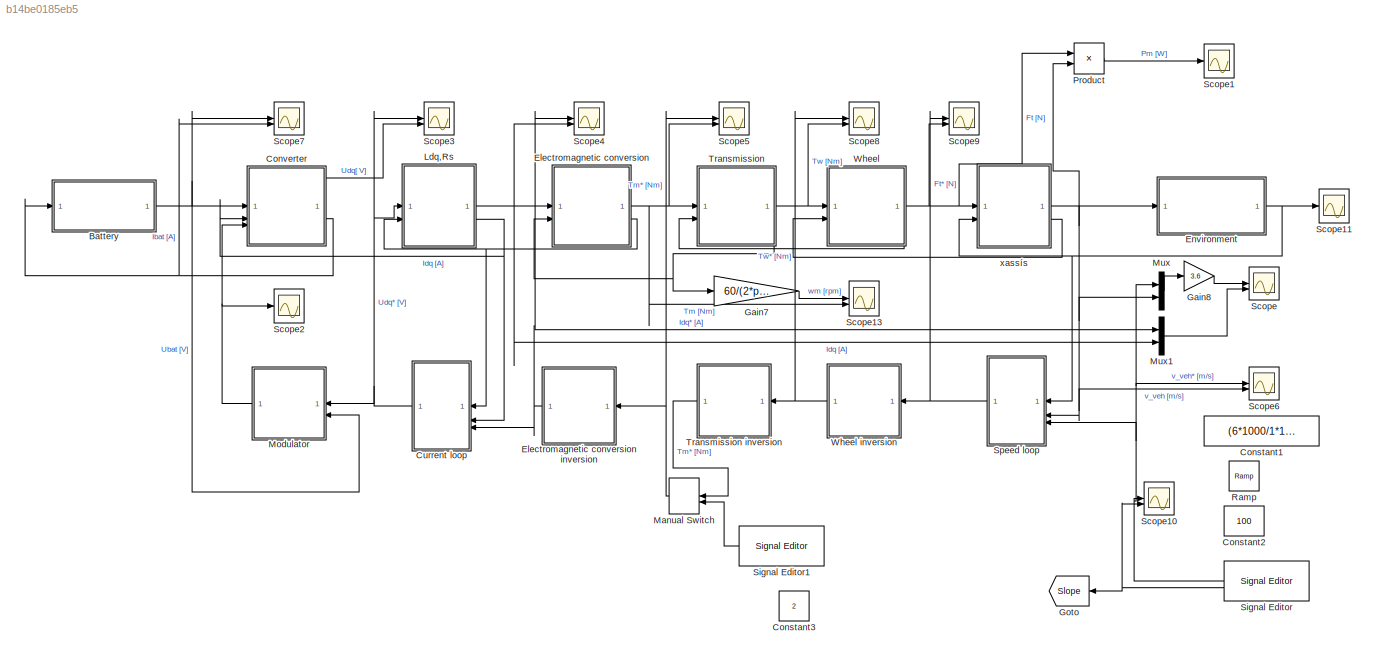
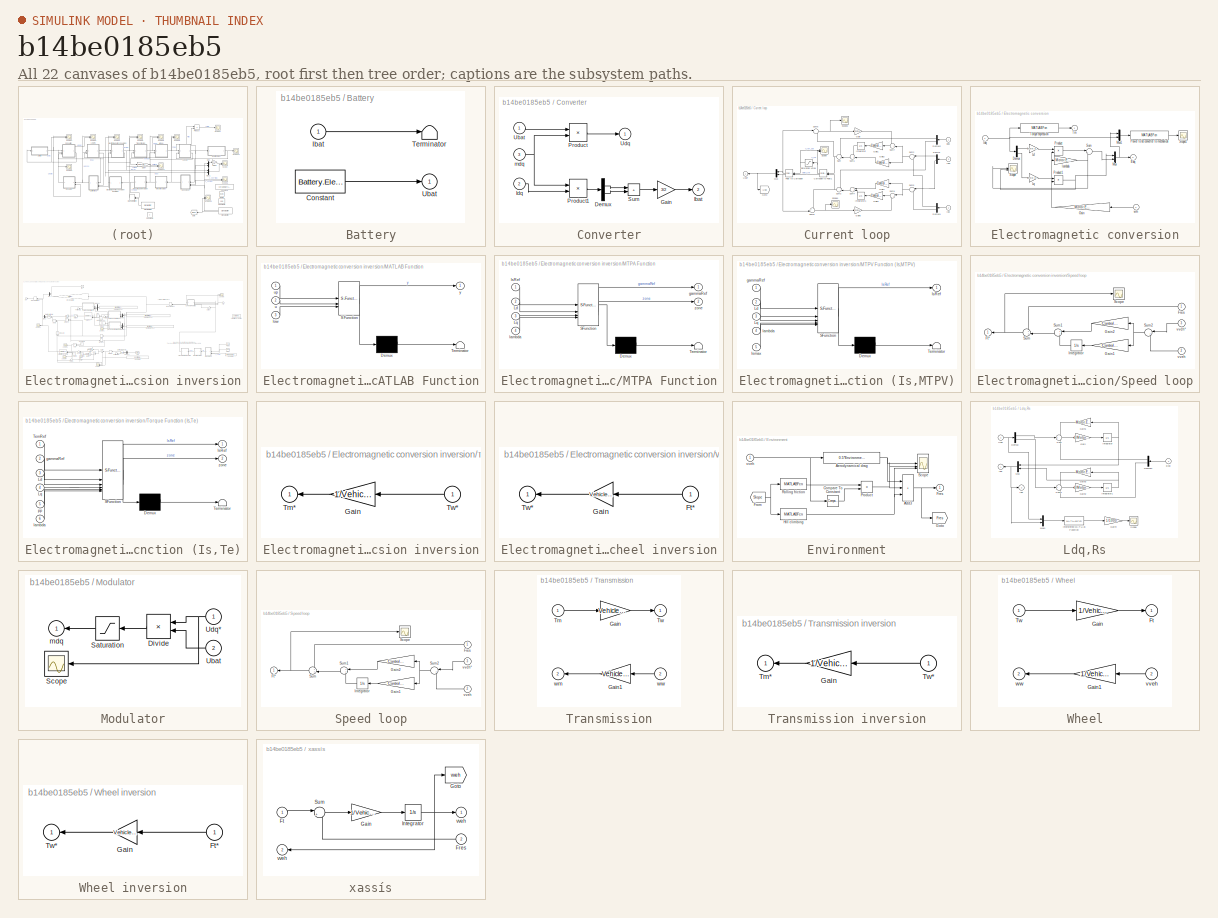
[diagram: thumbnail index - all 22 canvases of the model, root first then tree order]
MODEL slx_b14be0185eb5
KIND model
CONFIG AbsTol = auto
CONFIG EnableMultiTasking = on
CONFIG FixedStep = auto
CONFIG MaxStep = 1
CONFIG MinStep = auto
CONFIG RelTol = 1e-3
CONFIG SampleTimeConstraint = Unconstrained
CONFIG SolverName = ode45
CONFIG StartTime = 0.0
CONFIG StopTime = 10
BLOCK [SubSystem] Battery
  AncestorBlock = simulink/REM/SE
BLOCK [Constant] Battery/Constant
  Value = Battery.Electrical.Ubat
BLOCK [Inport] Battery/Ibat
BLOCK [Terminator] Battery/Terminator
BLOCK [Outport] Battery/Ubat
  InitialOutput = 0
  VectorParamsAs1DForOutWhenUnconnected = off
BLOCK [Constant] Constant1
  NameLocation = top
  Value = (6*1000/1*1/3600)
BLOCK [Constant] Constant2
  NameLocation = top
  Value = 100
BLOCK [Constant] Constant3
  NameLocation = top
  Value = 2
BLOCK [SubSystem] Converter
  AncestorBlock = simulink/REM/EC Elec
  NameLocation = top
BLOCK [Demux] Converter/Demux
  Outputs = 2
BLOCK [Gain] Converter/Gain
  Gain = 3/2
BLOCK [Outport] Converter/Ibat
  InitialOutput = 0
  NameLocation = top
  Port = 2
  VectorParamsAs1DForOutWhenUnconnected = off
BLOCK [Inport] Converter/Idq
  NameLocation = top
  Port = 2
BLOCK [Product] Converter/Product
BLOCK [Product] Converter/Product1
BLOCK [Sum] Converter/Sum
  IconShape = rectangular
BLOCK [Inport] Converter/Ubat
BLOCK [Outport] Converter/Udq
  InitialOutput = 0
  VectorParamsAs1DForOutWhenUnconnected = off
BLOCK [Inport] Converter/mdq
  Port = 3
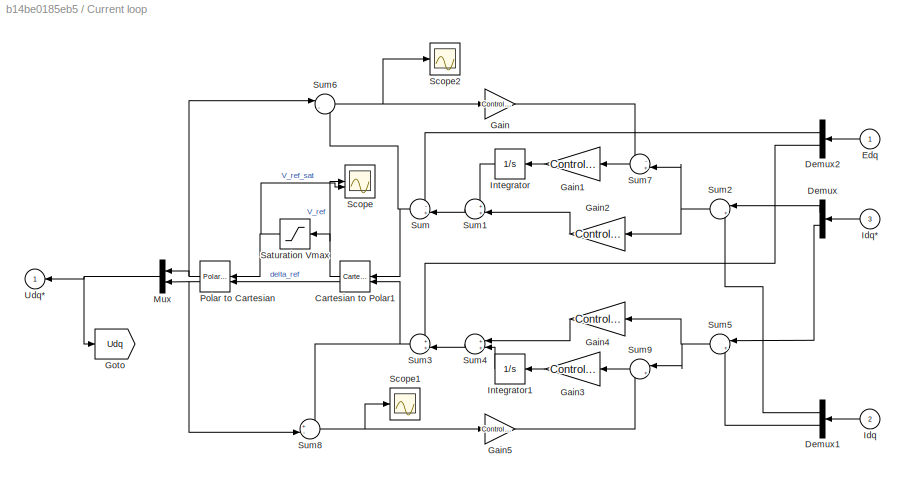
BLOCK [SubSystem] Current loop
  AncestorBlock = simulink/SMC/Asservissement\nCorrecteur IP
BLOCK [Reference] Current loop/Cartesian to Polar1  REF=simulink_extras/Transformations/Cartesian to
Polar
  NameLocation = top
  SourceBlock = simulink_extras/Transformations/Cartesian to\nPolar
  SourceType = Cart2Polar
BLOCK [Demux] Current loop/Demux
  NameLocation = top
  Outputs = 2
BLOCK [Demux] Current loop/Demux1
  NameLocation = top
  Outputs = 2
BLOCK [Demux] Current loop/Demux2
  NameLocation = top
  Outputs = 2
BLOCK [Inport] Current loop/Edq
  NameLocation = top
BLOCK [Gain] Current loop/Gain
  Gain = Control.Current.Kaw_id
BLOCK [Gain] Current loop/Gain1
  Gain = Control.Current.Ki_id
  NameLocation = top
BLOCK [Gain] Current loop/Gain2
  Gain = Control.Current.Kp_id
  NameLocation = top
BLOCK [Gain] Current loop/Gain3
  Gain = Control.Current.Ki_iq
  NameLocation = top
BLOCK [Gain] Current loop/Gain4
  Gain = Control.Current.Kp_iq
  NameLocation = top
BLOCK [Gain] Current loop/Gain5
  Gain = Control.Current.Kaw_iq
BLOCK [Goto] Current loop/Goto
  GotoTag = Udq
  TagVisibility = global
BLOCK [Inport] Current loop/Idq
  NameLocation = top
  Port = 2
BLOCK [Inport] Current loop/Idq*
  Port = 3
BLOCK [Integrator] Current loop/Integrator
  NameLocation = top
BLOCK [Integrator] Current loop/Integrator1
  NameLocation = top
BLOCK [Mux] Current loop/Mux
  DisplayOption = bar
  Inputs = 2
  NameLocation = top
BLOCK [Reference] Current loop/Polar to Cartesian  REF=simulink_extras/Transformations/Polar to
Cartesian
  NameLocation = top
  SourceBlock = simulink_extras/Transformations/Polar to\nCartesian
  SourceType = Polar2Cart
BLOCK [Saturate] Current loop/Saturation Vmax
  LowerLimit = -Motor.Electrical.Umax
  NameLocation = top
  UpperLimit = Motor.Electrical.Umax
BLOCK [Scope] Current loop/Scope
  Floating = off
  NumInputPorts = 2
  ScopeSpecificationString = Simulink.scopes.TimeScopeBlockCfg('CurrentConfiguration', extmgr.ConfigurationSet(extmgr.Configuration('Core','General UI',true),extmgr.Configuration('Core','Source UI',true),extmgr.Configuration('Sources','WiredSimulink',true,'DataLoggingVariableName','ScopeData1'),extmgr.Configuration('Visuals','Time Domain',true,'SerializedDisplays',{struct('MinYLimReal','-3.96619','MaxYLimReal','35.69567','YLa...<+1453ch>
BLOCK [Scope] Current loop/Scope1
  Floating = off
  NumInputPorts = 1
  ScopeSpecificationString = Simulink.scopes.TimeScopeBlockCfg('CurrentConfiguration', extmgr.ConfigurationSet(extmgr.Configuration('Core','General UI',true),extmgr.Configuration('Core','Source UI',true),extmgr.Configuration('Sources','WiredSimulink',true,'DataLoggingVariableName','ScopeData3'),extmgr.Configuration('Visuals','Time Domain',true,'SerializedDisplays',{struct('MinYLimReal','-46.65621','MaxYLimReal','30.16965','YL...<+1369ch>
BLOCK [Scope] Current loop/Scope2
  Floating = off
  NumInputPorts = 1
  ScopeSpecificationString = Simulink.scopes.TimeScopeBlockCfg('CurrentConfiguration', extmgr.ConfigurationSet(extmgr.Configuration('Core','General UI',true),extmgr.Configuration('Core','Source UI',true),extmgr.Configuration('Sources','WiredSimulink',true,'DataLoggingVariableName','ScopeData3'),extmgr.Configuration('Visuals','Time Domain',true,'SerializedDisplays',{struct('MinYLimReal','-22.60835','MaxYLimReal','29.61566','YL...<+1369ch>
BLOCK [Sum] Current loop/Sum
  Inputs = -+|
  NameLocation = top
BLOCK [Sum] Current loop/Sum1
  NameLocation = top
BLOCK [Sum] Current loop/Sum2
  Inputs = |+-
  NameLocation = top
BLOCK [Sum] Current loop/Sum3
  Inputs = ++|
  NameLocation = top
BLOCK [Sum] Current loop/Sum4
  NameLocation = top
BLOCK [Sum] Current loop/Sum5
  Inputs = |+-
  NameLocation = top
BLOCK [Sum] Current loop/Sum6
  Inputs = |-+
BLOCK [Sum] Current loop/Sum7
  Inputs = -+|
  NameLocation = top
BLOCK [Sum] Current loop/Sum8
  Inputs = +-|
BLOCK [Sum] Current loop/Sum9
  Inputs = |+-
  NameLocation = top
BLOCK [Outport] Current loop/Udq*
  InitialOutput = 0
  VectorParamsAs1DForOutWhenUnconnected = off
BLOCK [SubSystem] Electromagnetic conversion
  AncestorBlock = simulink/REM/EC EM
  NameLocation = top
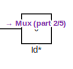
[diagram: Electromagnetic conversion inversion - part 1/5, top left region]
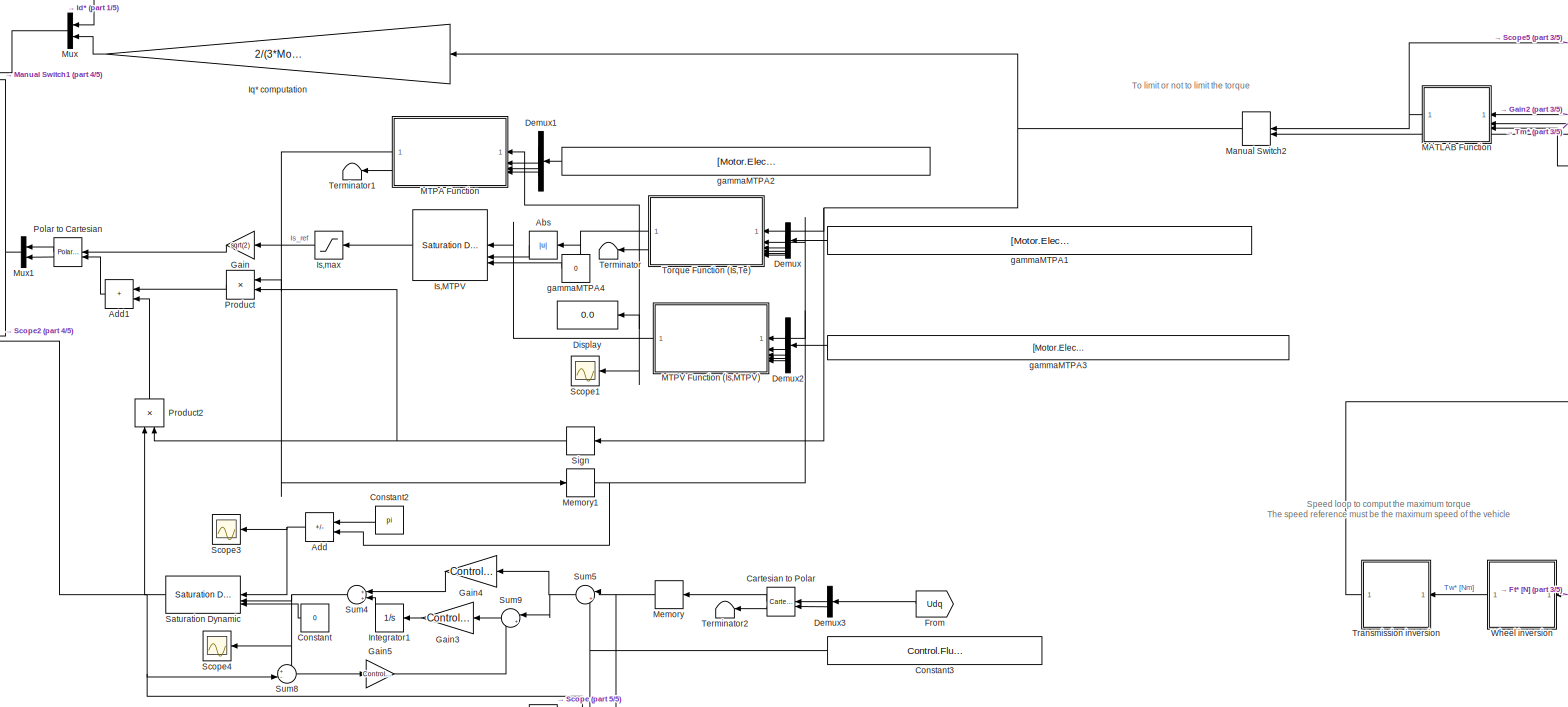
[diagram: Electromagnetic conversion inversion - part 2/5, most of the canvas]
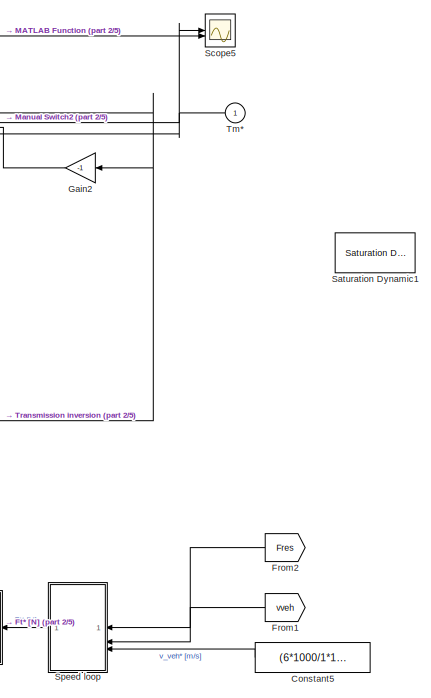
[diagram: Electromagnetic conversion inversion - part 3/5, right side, full height]
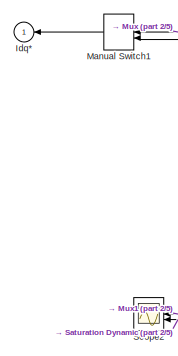
[diagram: Electromagnetic conversion inversion - part 4/5, middle left region]
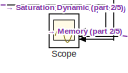
[diagram: Electromagnetic conversion inversion - part 5/5, bottom center region]
BLOCK [SubSystem] Electromagnetic conversion inversion
  AncestorBlock = simulink/SMC/Inversion EC\navec mesure
BLOCK [Abs] Electromagnetic conversion inversion/Abs
  NameLocation = top
  SaturateOnIntegerOverflow = off
BLOCK [Sum] Electromagnetic conversion inversion/Add
  IconShape = rectangular
  Inputs = +-
  NameLocation = top
BLOCK [Sum] Electromagnetic conversion inversion/Add1
  IconShape = rectangular
  NameLocation = top
BLOCK [Reference] Electromagnetic conversion inversion/Cartesian to Polar  REF=simulink_extras/Transformations/Cartesian to
Polar
  NameLocation = top
  SourceBlock = simulink_extras/Transformations/Cartesian to\nPolar
  SourceType = Cart2Polar
BLOCK [Constant] Electromagnetic conversion inversion/Constant
  NameLocation = top
  Value = 0
BLOCK [Constant] Electromagnetic conversion inversion/Constant2
  NameLocation = top
  Value = pi
BLOCK [Constant] Electromagnetic conversion inversion/Constant3
  NameLocation = top
  SampleTime = -1
  Value = Control.FluxWeakening.Umax_FW
BLOCK [Constant] Electromagnetic conversion inversion/Constant5
  NameLocation = top
  Value = (6*1000/1*1/3600)
BLOCK [Demux] Electromagnetic conversion inversion/Demux
  NameLocation = top
BLOCK [Demux] Electromagnetic conversion inversion/Demux1
  NameLocation = top
  Outputs = 3
BLOCK [Demux] Electromagnetic conversion inversion/Demux2
  NameLocation = right
BLOCK [Demux] Electromagnetic conversion inversion/Demux3
  NameLocation = top
  Outputs = 2
BLOCK [Display] Electromagnetic conversion inversion/Display
  Decimation = 1
  NameLocation = top
BLOCK [From] Electromagnetic conversion inversion/From
  GotoTag = Udq
  NameLocation = top
  TagVisibility = global
BLOCK [From] Electromagnetic conversion inversion/From1
  GotoTag = vveh
  NameLocation = top
  TagVisibility = global
BLOCK [From] Electromagnetic conversion inversion/From2
  GotoTag = Fres
  NameLocation = top
  TagVisibility = global
BLOCK [Gain] Electromagnetic conversion inversion/Gain
  Gain = sqrt(2)
  NameLocation = top
BLOCK [Gain] Electromagnetic conversion inversion/Gain2
  Gain = -1
  NameLocation = top
BLOCK [Gain] Electromagnetic conversion inversion/Gain3
  Gain = Control.FluxWeakening.Ki_V
  NameLocation = top
BLOCK [Gain] Electromagnetic conversion inversion/Gain4
  Gain = Control.FluxWeakening.Kp_V
  NameLocation = top
BLOCK [Gain] Electromagnetic conversion inversion/Gain5
  Gain = Control.FluxWeakening.Kaw_V
BLOCK [Constant] Electromagnetic conversion inversion/Id*
  NameLocation = top
  Value = 0
BLOCK [Outport] Electromagnetic conversion inversion/Idq*
  InitialOutput = 0
  VectorParamsAs1DForOutWhenUnconnected = off
BLOCK [Integrator] Electromagnetic conversion inversion/Integrator1
  NameLocation = top
BLOCK [Gain] Electromagnetic conversion inversion/Iq* computation
  Gain = 2/(3*Motor.Electrical.pp*Motor.Electrical.lambda)
  NameLocation = top
BLOCK [Reference] Electromagnetic conversion inversion/Is,MTPV  REF=simulink/Discontinuities/Saturation
Dynamic
  NameLocation = top
  SourceBlock = simulink/Discontinuities/Saturation\nDynamic
  SourceType = Saturation Dynamic
BLOCK [Saturate] Electromagnetic conversion inversion/Is,max
  LowerLimit = 0
  NameLocation = top
  UpperLimit = Motor.Electrical.Imax
BLOCK [SubSystem] Electromagnetic conversion inversion/MATLAB Function
  ErrorFcn = Stateflow.Translate.translate
  LibrarySourceBlock = simulink/User-Defined\nFunctions/MATLAB Function
  NameLocation = top
  PermitHierarchicalResolution = ExplicitOnly
  SFBlockType = MATLAB Function
  TreatAsAtomicUnit = on
BLOCK [Demux] Electromagnetic conversion inversion/MATLAB Function/ Demux 
  Outputs = 1
BLOCK [S-Function] Electromagnetic conversion inversion/MATLAB Function/ SFunction 
  EnableBusSupport = on
  FunctionName = sf_sfun
  PortCounts = [3 2]
  SFcnIsStateOwnerBlock = off
  SFunctionDeploymentMode = off
  Tag = Stateflow S-Function 4
BLOCK [Terminator] Electromagnetic conversion inversion/MATLAB Function/ Terminator 
BLOCK [Inport] Electromagnetic conversion inversion/MATLAB Function/low
  Port = 3
BLOCK [Inport] Electromagnetic conversion inversion/MATLAB Function/u
  Port = 2
BLOCK [Inport] Electromagnetic conversion inversion/MATLAB Function/up
BLOCK [Outport] Electromagnetic conversion inversion/MATLAB Function/y
BLOCK [SubSystem] Electromagnetic conversion inversion/MTPA Function
  ErrorFcn = Stateflow.Translate.translate
  LibrarySourceBlock = simulink/User-Defined\nFunctions/MATLAB Function
  NameLocation = top
  PermitHierarchicalResolution = ExplicitOnly
  SFBlockType = MATLAB Function
  TreatAsAtomicUnit = on
BLOCK [Demux] Electromagnetic conversion inversion/MTPA Function/ Demux 
  Outputs = 1
BLOCK [S-Function] Electromagnetic conversion inversion/MTPA Function/ SFunction 
  EnableBusSupport = on
  FunctionName = sf_sfun
  PortCounts = [4 3]
  SFcnIsStateOwnerBlock = off
  SFunctionDeploymentMode = off
  Tag = Stateflow S-Function 2
BLOCK [Terminator] Electromagnetic conversion inversion/MTPA Function/ Terminator 
BLOCK [Inport] Electromagnetic conversion inversion/MTPA Function/IsRef
BLOCK [Inport] Electromagnetic conversion inversion/MTPA Function/Ld
  Port = 2
BLOCK [Inport] Electromagnetic conversion inversion/MTPA Function/Lq
  Port = 3
BLOCK [Outport] Electromagnetic conversion inversion/MTPA Function/gammaRef
BLOCK [Inport] Electromagnetic conversion inversion/MTPA Function/lambda
  Port = 4
BLOCK [Outport] Electromagnetic conversion inversion/MTPA Function/zone
  Port = 2
BLOCK [SubSystem] Electromagnetic conversion inversion/MTPV Function (Is,MTPV)
  ErrorFcn = Stateflow.Translate.translate
  LibrarySourceBlock = simulink/User-Defined\nFunctions/MATLAB Function
  NameLocation = top
  PermitHierarchicalResolution = ExplicitOnly
  SFBlockType = MATLAB Function
  TreatAsAtomicUnit = on
BLOCK [Demux] Electromagnetic conversion inversion/MTPV Function (Is,MTPV)/ Demux 
  Outputs = 1
BLOCK [S-Function] Electromagnetic conversion inversion/MTPV Function (Is,MTPV)/ SFunction 
  EnableBusSupport = on
  FunctionName = sf_sfun
  PortCounts = [5 2]
  SFcnIsStateOwnerBlock = off
  SFunctionDeploymentMode = off
  Tag = Stateflow S-Function 3
BLOCK [Terminator] Electromagnetic conversion inversion/MTPV Function (Is,MTPV)/ Terminator 
BLOCK [Outport] Electromagnetic conversion inversion/MTPV Function (Is,MTPV)/IsRef
BLOCK [Inport] Electromagnetic conversion inversion/MTPV Function (Is,MTPV)/Ismax
  Port = 5
BLOCK [Inport] Electromagnetic conversion inversion/MTPV Function (Is,MTPV)/Ld
  Port = 2
BLOCK [Inport] Electromagnetic conversion inversion/MTPV Function (Is,MTPV)/Lq
  Port = 3
BLOCK [Inport] Electromagnetic conversion inversion/MTPV Function (Is,MTPV)/gammaRef
BLOCK [Inport] Electromagnetic conversion inversion/MTPV Function (Is,MTPV)/lambda
  Port = 4
BLOCK [ManualSwitch] Electromagnetic conversion inversion/Manual Switch1
  NameLocation = top
BLOCK [ManualSwitch] Electromagnetic conversion inversion/Manual Switch2
  CurrentSetting = 0
  NameLocation = top
BLOCK [Memory] Electromagnetic conversion inversion/Memory
  NameLocation = top
BLOCK [Memory] Electromagnetic conversion inversion/Memory1
  InitialCondition = pi/2
BLOCK [Mux] Electromagnetic conversion inversion/Mux
  DisplayOption = bar
  Inputs = 2
  NameLocation = top
BLOCK [Mux] Electromagnetic conversion inversion/Mux1
  DisplayOption = bar
  Inputs = 2
  NameLocation = top
BLOCK [Reference] Electromagnetic conversion inversion/Polar to Cartesian  REF=simulink_extras/Transformations/Polar to
Cartesian
  NameLocation = top
  SourceBlock = simulink_extras/Transformations/Polar to\nCartesian
  SourceType = Polar2Cart
BLOCK [Product] Electromagnetic conversion inversion/Product
  NameLocation = top
BLOCK [Product] Electromagnetic conversion inversion/Product2
  NameLocation = right
BLOCK [Reference] Electromagnetic conversion inversion/Saturation Dynamic  REF=simulink/Discontinuities/Saturation
Dynamic
  NameLocation = top
  SourceBlock = simulink/Discontinuities/Saturation\nDynamic
  SourceType = Saturation Dynamic
BLOCK [Reference] Electromagnetic conversion inversion/Saturation Dynamic1  REF=simulink/Discontinuities/Saturation
Dynamic
  NameLocation = top
  SourceBlock = simulink/Discontinuities/Saturation\nDynamic
  SourceType = Saturation Dynamic
BLOCK [Scope] Electromagnetic conversion inversion/Scope
  Floating = off
  NameLocation = top
  NumInputPorts = 3
  ScopeSpecificationString = Simulink.scopes.TimeScopeBlockCfg('CurrentConfiguration', extmgr.ConfigurationSet(extmgr.Configuration('Core','General UI',true),extmgr.Configuration('Core','Source UI',true),extmgr.Configuration('Sources','WiredSimulink',true,'DataLoggingVariableName','ScopeData1'),extmgr.Configuration('Visuals','Time Domain',true,'SerializedDisplays',{struct('MinYLimReal','-0.08067','MaxYLimReal','0.72602','YLab...<+2132ch>
BLOCK [Scope] Electromagnetic conversion inversion/Scope1
  Floating = off
  NameLocation = top
  NumInputPorts = 1
  ScopeSpecificationString = Simulink.scopes.TimeScopeBlockCfg('CurrentConfiguration', extmgr.ConfigurationSet(extmgr.Configuration('Core','General UI',true),extmgr.Configuration('Core','Source UI',true),extmgr.Configuration('Sources','WiredSimulink',true,'DataLoggingVariableName','ScopeData2'),extmgr.Configuration('Visuals','Time Domain',true,'SerializedDisplays',{struct('MinYLimReal','-36.92443','MaxYLimReal','332.31991','Y...<+1398ch>
BLOCK [Scope] Electromagnetic conversion inversion/Scope2
  Floating = off
  NameLocation = top
  NumInputPorts = 2
  ScopeSpecificationString = Simulink.scopes.TimeScopeBlockCfg('CurrentConfiguration', extmgr.ConfigurationSet(extmgr.Configuration('Core','General UI',true),extmgr.Configuration('Core','Source UI',true),extmgr.Configuration('Sources','WiredSimulink',true,'DataLoggingVariableName','ScopeData1'),extmgr.Configuration('Visuals','Time Domain',true,'SerializedDisplays',{struct('MinYLimReal','-93.3464','MaxYLimReal','129.18585','YL...<+2062ch>
BLOCK [Scope] Electromagnetic conversion inversion/Scope3
  Floating = off
  NameLocation = top
  NumInputPorts = 1
  ScopeSpecificationString = Simulink.scopes.TimeScopeBlockCfg('CurrentConfiguration', extmgr.ConfigurationSet(extmgr.Configuration('Core','General UI',true),extmgr.Configuration('Core','Source UI',true),extmgr.Configuration('Sources','WiredSimulink',true,'DataLoggingVariableName','ScopeData2'),extmgr.Configuration('Visuals','Time Domain',true,'SerializedDisplays',{struct('MinYLimReal','1.30855','MaxYLimReal','1.59993','YLabe...<+1360ch>
BLOCK [Scope] Electromagnetic conversion inversion/Scope4
  Floating = off
  NameLocation = top
  NumInputPorts = 1
  ScopeSpecificationString = Simulink.scopes.TimeScopeBlockCfg('CurrentConfiguration', extmgr.ConfigurationSet(extmgr.Configuration('Core','General UI',true),extmgr.Configuration('Core','Source UI',true),extmgr.Configuration('Sources','WiredSimulink',true,'DataLoggingVariableName','ScopeData3'),extmgr.Configuration('Visuals','Time Domain',true,'SerializedDisplays',{struct('MinYLimReal','-7.5628','MaxYLimReal','1.55737','YLabe...<+1359ch>
BLOCK [Scope] Electromagnetic conversion inversion/Scope5
  Floating = off
  NumInputPorts = 2
  ScopeSpecificationString = Simulink.scopes.TimeScopeBlockCfg('CurrentConfiguration', extmgr.ConfigurationSet(extmgr.Configuration('Core','General UI',true),extmgr.Configuration('Core','Source UI',true),extmgr.Configuration('Sources','WiredSimulink',true,'DataLoggingVariableName','ScopeData1'),extmgr.Configuration('Visuals','Time Domain',true,'SerializedDisplays',{struct('MinYLimReal','-0.0625','MaxYLimReal','0.5625','YLabel...<+1449ch>
BLOCK [Signum] Electromagnetic conversion inversion/Sign
  NameLocation = top
BLOCK [SubSystem] Electromagnetic conversion inversion/Speed loop
  AncestorBlock = simulink/SMC/Asservissement\nCorrecteur IP
BLOCK [Inport] Electromagnetic conversion inversion/Speed loop/Fres
  NameLocation = top
BLOCK [Outport] Electromagnetic conversion inversion/Speed loop/Ft*
  InitialOutput = 0
  VectorParamsAs1DForOutWhenUnconnected = off
BLOCK [Gain] Electromagnetic conversion inversion/Speed loop/Gain1
  Gain = Control.Speed.Ki_v
  NameLocation = top
BLOCK [Gain] Electromagnetic conversion inversion/Speed loop/Gain2
  Gain = Control.Speed.Kp_v
  NameLocation = top
BLOCK [Integrator] Electromagnetic conversion inversion/Speed loop/Integrator
  NameLocation = top
BLOCK [Scope] Electromagnetic conversion inversion/Speed loop/Scope
  Floating = off
  NumInputPorts = 1
  ScopeSpecificationString = Simulink.scopes.TimeScopeBlockCfg('CurrentConfiguration', extmgr.ConfigurationSet(extmgr.Configuration('Core','General UI',true),extmgr.Configuration('Core','Source UI',true),extmgr.Configuration('Sources','WiredSimulink',true,'DataLoggingVariableName','ScopeData1'),extmgr.Configuration('Visuals','Time Domain',true,'SerializedDisplays',{struct('MinYLimReal','533.15332','MaxYLimReal','2003.62609','...<+1508ch>
BLOCK [Sum] Electromagnetic conversion inversion/Speed loop/Sum
  Inputs = ++|
  NameLocation = top
BLOCK [Sum] Electromagnetic conversion inversion/Speed loop/Sum1
  NameLocation = top
BLOCK [Sum] Electromagnetic conversion inversion/Speed loop/Sum2
  Inputs = |+-
  NameLocation = top
BLOCK [Inport] Electromagnetic conversion inversion/Speed loop/vveh
  NameLocation = top
  Port = 2
BLOCK [Inport] Electromagnetic conversion inversion/Speed loop/vveh*
  Port = 3
BLOCK [Sum] Electromagnetic conversion inversion/Sum4
  NameLocation = top
BLOCK [Sum] Electromagnetic conversion inversion/Sum5
  Inputs = |+-
  NameLocation = top
BLOCK [Sum] Electromagnetic conversion inversion/Sum8
  Inputs = +-|
BLOCK [Sum] Electromagnetic conversion inversion/Sum9
  Inputs = |+-
  NameLocation = top
BLOCK [Terminator] Electromagnetic conversion inversion/Terminator
  NameLocation = top
BLOCK [Terminator] Electromagnetic conversion inversion/Terminator1
  NameLocation = top
BLOCK [Terminator] Electromagnetic conversion inversion/Terminator2
  NameLocation = top
BLOCK [Inport] Electromagnetic conversion inversion/Tm*
BLOCK [SubSystem] Electromagnetic conversion inversion/Torque Function (Is,Te)
  ErrorFcn = Stateflow.Translate.translate
  LibrarySourceBlock = simulink/User-Defined\nFunctions/MATLAB Function
  NameLocation = top
  PermitHierarchicalResolution = ExplicitOnly
  SFBlockType = MATLAB Function
  TreatAsAtomicUnit = on
BLOCK [Demux] Electromagnetic conversion inversion/Torque Function (Is,Te)/ Demux 
  Outputs = 1
BLOCK [S-Function] Electromagnetic conversion inversion/Torque Function (Is,Te)/ SFunction 
  EnableBusSupport = on
  FunctionName = sf_sfun
  PortCounts = [6 3]
  SFcnIsStateOwnerBlock = off
  SFunctionDeploymentMode = off
  Tag = Stateflow S-Function 6
BLOCK [Terminator] Electromagnetic conversion inversion/Torque Function (Is,Te)/ Terminator 
BLOCK [Outport] Electromagnetic conversion inversion/Torque Function (Is,Te)/IsRef
BLOCK [Inport] Electromagnetic conversion inversion/Torque Function (Is,Te)/Ld
  Port = 3
BLOCK [Inport] Electromagnetic conversion inversion/Torque Function (Is,Te)/Lq
  Port = 4
BLOCK [Inport] Electromagnetic conversion inversion/Torque Function (Is,Te)/TemRef
BLOCK [Inport] Electromagnetic conversion inversion/Torque Function (Is,Te)/gammaRef
  Port = 2
BLOCK [Inport] Electromagnetic conversion inversion/Torque Function (Is,Te)/lambda
  Port = 6
BLOCK [Inport] Electromagnetic conversion inversion/Torque Function (Is,Te)/pp
  Port = 5
BLOCK [Outport] Electromagnetic conversion inversion/Torque Function (Is,Te)/zone
  Port = 2
BLOCK [SubSystem] Electromagnetic conversion inversion/Transmission inversion
  AncestorBlock = simulink/SMC/Inversion EC\navec mesure
BLOCK [Gain] Electromagnetic conversion inversion/Transmission inversion/Gain
  Gain = 1/Vehicle.kred
  NameLocation = top
BLOCK [Outport] Electromagnetic conversion inversion/Transmission inversion/Tm*
  InitialOutput = 0
  VectorParamsAs1DForOutWhenUnconnected = off
BLOCK [Inport] Electromagnetic conversion inversion/Transmission inversion/Tw*
  NameLocation = top
BLOCK [SubSystem] Electromagnetic conversion inversion/Wheel inversion
  AncestorBlock = simulink/SMC/Inversion EC\navec mesure
BLOCK [Inport] Electromagnetic conversion inversion/Wheel inversion/Ft*
  NameLocation = top
BLOCK [Gain] Electromagnetic conversion inversion/Wheel inversion/Gain
  Gain = Vehicle.rw
  NameLocation = top
BLOCK [Outport] Electromagnetic conversion inversion/Wheel inversion/Tw*
  InitialOutput = 0
  VectorParamsAs1DForOutWhenUnconnected = off
BLOCK [Constant] Electromagnetic conversion inversion/gammaMTPA1
  NameLocation = top
  SampleTime = -1
  Value = [Motor.Electrical.Ld,Motor.Electrical.Lq,Motor.Electrical.pp,Motor.Electrical.lambda/sqrt(2)]
BLOCK [Constant] Electromagnetic conversion inversion/gammaMTPA2
  NameLocation = top
  SampleTime = -1
  Value = [Motor.Electrical.Ld,Motor.Electrical.Lq,Motor.Electrical.lambda/sqrt(2)]
BLOCK [Constant] Electromagnetic conversion inversion/gammaMTPA3
  NameLocation = top
  SampleTime = -1
  Value = [Motor.Electrical.Ld,Motor.Electrical.Lq,Motor.Electrical.lambda/sqrt(2),Motor.Electrical.Imax/sqrt(2)]
BLOCK [Constant] Electromagnetic conversion inversion/gammaMTPA4
  NameLocation = top
  SampleTime = -1
  Value = 0
BLOCK [Demux] Electromagnetic conversion/Demux
  Outputs = 2
BLOCK [Outport] Electromagnetic conversion/Edq
  InitialOutput = 0
  NameLocation = top
  Port = 2
  VectorParamsAs1DForOutWhenUnconnected = off
BLOCK [Gain] Electromagnetic conversion/Gain
  Gain = Motor.Electrical.pp
BLOCK [Inport] Electromagnetic conversion/Idq
BLOCK [Gain] Electromagnetic conversion/Ld
  Gain = Motor.Electrical.Ld
BLOCK [Gain] Electromagnetic conversion/Lq
  Gain = Motor.Electrical.Lq
BLOCK [Mux] Electromagnetic conversion/Mux
  DisplayOption = bar
  Inputs = 2
BLOCK [Mux] Electromagnetic conversion/Mux1
  DisplayOption = bar
  Inputs = 2
BLOCK [MATLABFcn] Electromagnetic conversion/Power to be converter to mechanical
  MATLABFcn = 3/2*(u(1)*u(3)+u(2)*u(4))
BLOCK [Product] Electromagnetic conversion/Product
BLOCK [Product] Electromagnetic conversion/Product1
BLOCK [Scope] Electromagnetic conversion/Scope
  Floating = off
  NumInputPorts = 2
  ScopeSpecificationString = Simulink.scopes.TimeScopeBlockCfg('CurrentConfiguration', extmgr.ConfigurationSet(extmgr.Configuration('Core','General UI',true),extmgr.Configuration('Core','Source UI',true),extmgr.Configuration('Sources','WiredSimulink',true,'DataLoggingVariableName','ScopeData2'),extmgr.Configuration('Visuals','Time Domain',true,'SerializedDisplays',{struct('MinYLimReal','-90.66043','MaxYLimReal','815.94383','Y...<+1416ch>
BLOCK [Scope] Electromagnetic conversion/Scope1
  Floating = off
  NumInputPorts = 1
  ScopeSpecificationString = Simulink.scopes.TimeScopeBlockCfg('CurrentConfiguration', extmgr.ConfigurationSet(extmgr.Configuration('Core','General UI',true),extmgr.Configuration('Core','Source UI',true),extmgr.Configuration('Sources','WiredSimulink',true,'DataLoggingVariableName','ScopeData1'),extmgr.Configuration('Visuals','Time Domain',true,'SerializedDisplays',{struct('MinYLimReal','-1.00000','MaxYLimReal','1.00000','YLab...<+1394ch>
BLOCK [Sum] Electromagnetic conversion/Sum
  Inputs = |++
BLOCK [Outport] Electromagnetic conversion/Tm
  InitialOutput = 0
  VectorParamsAs1DForOutWhenUnconnected = off
BLOCK [MATLABFcn] Electromagnetic conversion/Torque expression
  MATLABFcn = 3/2*Motor.Electrical.pp*(Motor.Electrical.lambda*u(2)+(Motor.Electrical.Ld-Motor.Electrical.Lq)*u(1)*u(2))
  OutputDimensions = 1
BLOCK [Gain] Electromagnetic conversion/lambda
  Gain = Motor.Electrical.lambda
BLOCK [Inport] Electromagnetic conversion/wm
  Port = 2
BLOCK [SubSystem] Environment
  AncestorBlock = simulink/REM/SE
BLOCK [Sum] Environment/Add3
  IconShape = rectangular
  Inputs = +++
BLOCK [Fcn] Environment/Aerodynamical drag
  Expr = 0.5*Environment.rho*Vehicle.Af*Vehicle.Cd*(u(1)-Environment.vair)^2
BLOCK [Reference] Environment/Compare To Constant  REF=simulink/Logic and Bit
Operations/Compare
To Constant
  SourceBlock = simulink/Logic and Bit\nOperations/Compare\nTo Constant
  SourceType = Compare To Constant
BLOCK [Outport] Environment/Fres
  InitialOutput = 0
  VectorParamsAs1DForOutWhenUnconnected = off
BLOCK [From] Environment/From
  GotoTag = Slope
  TagVisibility = global
BLOCK [Goto] Environment/Goto
  GotoTag = Fres
  TagVisibility = global
BLOCK [MATLABFcn] Environment/Hill climbing
  MATLABFcn = Vehicle.mv*Environment.g*sin(atan(u(1)/100))
BLOCK [Product] Environment/Product
BLOCK [MATLABFcn] Environment/Rolling friction
  MATLABFcn = Vehicle.fr*Vehicle.mv*Environment.g*cos(atan(u(1)/100))
BLOCK [Scope] Environment/Scope
  Floating = off
  NumInputPorts = 3
  ScopeSpecificationString = Simulink.scopes.TimeScopeBlockCfg('CurrentConfiguration', extmgr.ConfigurationSet(extmgr.Configuration('Core','General UI',true),extmgr.Configuration('Core','Source UI',true),extmgr.Configuration('Sources','WiredSimulink',true,'DataLoggingVariableName','ScopeData2'),extmgr.Configuration('Visuals','Time Domain',true,'SerializedDisplays',{struct('MinYLimReal','-45.98437','MaxYLimReal','413.85938','Y...<+1413ch>
BLOCK [Inport] Environment/vveh
BLOCK [Gain] Gain7
  Gain = 60/(2*pi)
BLOCK [Gain] Gain8
  Gain = 3.6
BLOCK [Goto] Goto
  GotoTag = Slope
  NameLocation = top
  TagVisibility = global
BLOCK [SubSystem] Ldq,Rs
  AncestorBlock = simulink/REM/EA
  NameLocation = top
BLOCK [Demux] Ldq,Rs/Demux
  Outputs = 2
BLOCK [Demux] Ldq,Rs/Demux1
  NameLocation = top
  Outputs = 2
BLOCK [Inport] Ldq,Rs/Edq
  Port = 2
BLOCK [Gain] Ldq,Rs/Gain
  Gain = 1/Motor.Electrical.Ld
BLOCK [Gain] Ldq,Rs/Gain1
  Gain = Motor.Electrical.Rs
  NameLocation = top
BLOCK [Gain] Ldq,Rs/Gain2
  Gain = 1/Motor.Electrical.Lq
BLOCK [Gain] Ldq,Rs/Gain3
  Gain = Motor.Electrical.Rs
  NameLocation = top
BLOCK [Gain] Ldq,Rs/Gain4
  Gain = 1/1000
BLOCK [Outport] Ldq,Rs/Idq
  InitialOutput = 0
  NameLocation = top
  Port = 2
  VectorParamsAs1DForOutWhenUnconnected = off
BLOCK [Outport] Ldq,Rs/Idq 
  InitialOutput = 0
  VectorParamsAs1DForOutWhenUnconnected = off
BLOCK [Integrator] Ldq,Rs/Integrator
BLOCK [Integrator] Ldq,Rs/Integrator1
BLOCK [MATLABFcn] Ldq,Rs/Interpreted MATLAB Function
  MATLABFcn = 3/2*(u(1)*u(3)+u(2)*u(4))
BLOCK [Mux] Ldq,Rs/Mux
  DisplayOption = bar
  Inputs = 2
  NameLocation = top
BLOCK [Mux] Ldq,Rs/Mux1
  DisplayOption = bar
  Inputs = 2
BLOCK [Scope] Ldq,Rs/Scope
  Floating = off
  NumInputPorts = 1
  ScopeSpecificationString = Simulink.scopes.TimeScopeBlockCfg('CurrentConfiguration', extmgr.ConfigurationSet(extmgr.Configuration('Core','General UI',true),extmgr.Configuration('Core','Source UI',true),extmgr.Configuration('Sources','WiredSimulink',true,'DataLoggingVariableName','ScopeData1'),extmgr.Configuration('Visuals','Time Domain',true,'SerializedDisplays',{struct('MinYLimReal','-20.01658','MaxYLimReal','36.25368','YL...<+1370ch>
BLOCK [Sum] Ldq,Rs/Sum
  Inputs = -++
BLOCK [Sum] Ldq,Rs/Sum1
  Inputs = -+-
BLOCK [Inport] Ldq,Rs/Udq
BLOCK [ManualSwitch] Manual Switch
  NameLocation = top
BLOCK [SubSystem] Modulator
  AncestorBlock = simulink/SMC/Inversion EC\navec mesure
BLOCK [Product] Modulator/Divide
  Inputs = */
  NameLocation = top
BLOCK [Saturate] Modulator/Saturation
  LowerLimit = -1
  NameLocation = top
  UpperLimit = 1
BLOCK [Scope] Modulator/Scope
  Floating = off
  NameLocation = top
  NumInputPorts = 1
  ScopeSpecificationString = Simulink.scopes.TimeScopeBlockCfg('CurrentConfiguration', extmgr.ConfigurationSet(extmgr.Configuration('Core','General UI',true),extmgr.Configuration('Core','Source UI',true),extmgr.Configuration('Sources','WiredSimulink',true,'DataLoggingVariableName','ScopeData4'),extmgr.Configuration('Visuals','Time Domain',true,'SerializedDisplays',{struct('MinYLimReal','-8.9914','MaxYLimReal','8.39423','YLabe...<+1486ch>
BLOCK [Inport] Modulator/Ubat
  NameLocation = top
  Port = 2
BLOCK [Inport] Modulator/Udq*
  NameLocation = top
BLOCK [Outport] Modulator/mdq
  InitialOutput = 0
  VectorParamsAs1DForOutWhenUnconnected = off
BLOCK [Mux] Mux
  DisplayOption = bar
  Inputs = 2
BLOCK [Mux] Mux1
  DisplayOption = bar
  Inputs = 2
BLOCK [Product] Product
BLOCK [Reference] Ramp  REF=simulink/Sources/Ramp
  NameLocation = top
  SourceBlock = simulink/Sources/Ramp
  SourceType = Ramp
BLOCK [Scope] Scope
  Floating = off
  NumInputPorts = 2
  ScopeSpecificationString = Simulink.scopes.TimeScopeBlockCfg('CurrentConfiguration', extmgr.ConfigurationSet(extmgr.Configuration('Core','General UI',true),extmgr.Configuration('Core','Source UI',true),extmgr.Configuration('Sources','WiredSimulink',true,'DataLoggingVariableName','SpeedCurrent','DataLoggingDecimation','1','DataLoggingDecimateData',true),extmgr.Configuration('Visuals','Time Domain',true,'SerializedDisplays',{...<+2710ch>
BLOCK [Scope] Scope1
  Floating = off
  NumInputPorts = 1
  ScopeSpecificationString = Simulink.scopes.TimeScopeBlockCfg('CurrentConfiguration', extmgr.ConfigurationSet(extmgr.Configuration('Core','General UI',true),extmgr.Configuration('Core','Source UI',true),extmgr.Configuration('Sources','WiredSimulink',true,'DataLoggingVariableName','ScopeData1','DataLoggingSaveFormat','StructureWithTime','DataLoggingDecimation','1','DataLoggingDecimateData',true),extmgr.Configuration('Visuals'...<+1680ch>
BLOCK [Scope] Scope10
  Floating = off
  NumInputPorts = 2
  ScopeSpecificationString = Simulink.scopes.TimeScopeBlockCfg('CurrentConfiguration', extmgr.ConfigurationSet(extmgr.Configuration('Core','General UI',true),extmgr.Configuration('Core','Source UI',true),extmgr.Configuration('Sources','WiredSimulink',true,'DataLoggingVariableName','ScopeData1','DataLoggingDecimation','1','DataLoggingDecimateData',true),extmgr.Configuration('Visuals','Time Domain',true,'SerializedDisplays',{st...<+2454ch>
BLOCK [Scope] Scope11
  Floating = off
  NumInputPorts = 1
  ScopeSpecificationString = Simulink.scopes.TimeScopeBlockCfg('CurrentConfiguration', extmgr.ConfigurationSet(extmgr.Configuration('Core','General UI',true),extmgr.Configuration('Core','Source UI',true),extmgr.Configuration('Sources','WiredSimulink',true,'DataLoggingVariableName','ScopeData2','DataLoggingSaveFormat','StructureWithTime','DataLoggingDecimation','1','DataLoggingDecimateData',true),extmgr.Configuration('Visuals'...<+1677ch>
BLOCK [Scope] Scope13
  Floating = off
  NumInputPorts = 2
  ScopeSpecificationString = Simulink.scopes.TimeScopeBlockCfg('CurrentConfiguration', extmgr.ConfigurationSet(extmgr.Configuration('Core','General UI',true),extmgr.Configuration('Core','Source UI',true),extmgr.Configuration('Sources','WiredSimulink',true,'DataLoggingVariableName','ScopeData1','DataLoggingSaveFormat','StructureWithTime','DataLoggingDecimation','1','DataLoggingDecimateData',true),extmgr.Configuration('Visuals'...<+2555ch>
BLOCK [Scope] Scope2
  Floating = off
  NumInputPorts = 1
  ScopeSpecificationString = Simulink.scopes.TimeScopeBlockCfg('CurrentConfiguration', extmgr.ConfigurationSet(extmgr.Configuration('Core','General UI',true),extmgr.Configuration('Core','Source UI',true),extmgr.Configuration('Sources','WiredSimulink',true,'DataLoggingVariableName','ScopeData9','DataLoggingSaveFormat','StructureWithTime','DataLoggingDecimation','1','DataLoggingDecimateData',true),extmgr.Configuration('Visuals'...<+1685ch>
BLOCK [Scope] Scope3
  Floating = off
  NumInputPorts = 2
  ScopeSpecificationString = Simulink.scopes.TimeScopeBlockCfg('CurrentConfiguration', extmgr.ConfigurationSet(extmgr.Configuration('Core','General UI',true),extmgr.Configuration('Core','Source UI',true),extmgr.Configuration('Sources','WiredSimulink',true,'DataLoggingVariableName','ScopeData10','DataLoggingSaveFormat','StructureWithTime','DataLoggingDecimation','1','DataLoggingDecimateData',true),extmgr.Configuration('Visuals...<+1872ch>
BLOCK [Scope] Scope4
  Floating = off
  NumInputPorts = 2
  ScopeSpecificationString = Simulink.scopes.TimeScopeBlockCfg('CurrentConfiguration', extmgr.ConfigurationSet(extmgr.Configuration('Core','General UI',true),extmgr.Configuration('Core','Source UI',true),extmgr.Configuration('Sources','WiredSimulink',true,'DataLoggingVariableName','ScopeData1','DataLoggingSaveFormat','StructureWithTime','DataLoggingDecimation','1','DataLoggingDecimateData',true),extmgr.Configuration('Visuals'...<+2051ch>
BLOCK [Scope] Scope5
  Floating = off
  NumInputPorts = 2
  ScopeSpecificationString = Simulink.scopes.TimeScopeBlockCfg('CurrentConfiguration', extmgr.ConfigurationSet(extmgr.Configuration('Core','General UI',true),extmgr.Configuration('Core','Source UI',true),extmgr.Configuration('Sources','WiredSimulink',true,'DataLoggingVariableName','ScopeData2','DataLoggingSaveFormat','StructureWithTime','DataLoggingDecimation','1','DataLoggingDecimateData',true),extmgr.Configuration('Visuals'...<+1796ch>
BLOCK [Scope] Scope6
  Floating = off
  NumInputPorts = 2
  ScopeSpecificationString = Simulink.scopes.TimeScopeBlockCfg('CurrentConfiguration', extmgr.ConfigurationSet(extmgr.Configuration('Core','General UI',true),extmgr.Configuration('Core','Source UI',true),extmgr.Configuration('Sources','WiredSimulink',true,'DataLoggingVariableName','ScopeData1','DataLoggingDecimation','1','DataLoggingDecimateData',true),extmgr.Configuration('Visuals','Time Domain',true,'SerializedDisplays',{st...<+1805ch>
BLOCK [Scope] Scope7
  Floating = off
  NumInputPorts = 2
  ScopeSpecificationString = Simulink.scopes.TimeScopeBlockCfg('CurrentConfiguration', extmgr.ConfigurationSet(extmgr.Configuration('Core','General UI',true),extmgr.Configuration('Core','Source UI',true),extmgr.Configuration('Sources','WiredSimulink',true,'DataLoggingVariableName','ScopeData1','DataLoggingSaveFormat','StructureWithTime','DataLoggingDecimation','1','DataLoggingDecimateData',true),extmgr.Configuration('Visuals'...<+2385ch>
BLOCK [Scope] Scope8
  Floating = off
  NumInputPorts = 2
  ScopeSpecificationString = Simulink.scopes.TimeScopeBlockCfg('CurrentConfiguration', extmgr.ConfigurationSet(extmgr.Configuration('Core','General UI',true),extmgr.Configuration('Core','Source UI',true),extmgr.Configuration('Sources','WiredSimulink',true,'DataLoggingVariableName','ScopeData1','DataLoggingSaveFormat','StructureWithTime','DataLoggingDecimation','1','DataLoggingDecimateData',true),extmgr.Configuration('Visuals'...<+2454ch>
BLOCK [Scope] Scope9
  Floating = off
  NumInputPorts = 2
  ScopeSpecificationString = Simulink.scopes.TimeScopeBlockCfg('CurrentConfiguration', extmgr.ConfigurationSet(extmgr.Configuration('Core','General UI',true),extmgr.Configuration('Core','Source UI',true),extmgr.Configuration('Sources','WiredSimulink',true,'DataLoggingVariableName','ScopeData2','DataLoggingSaveFormat','StructureWithTime','DataLoggingDecimation','1','DataLoggingDecimateData',true),extmgr.Configuration('Visuals'...<+1585ch>
BLOCK [Reference] Signal Editor  REF=SignalEditorBlockLib/Signal Editor
  LibrarySourceBlock = simulink/Sources/Signal Editor
  NameLocation = top
  SourceBlock = SignalEditorBlockLib/Signal Editor
  SourceType = SignalEditor
  UserDataPersistent = on
BLOCK [Reference] Signal Editor1  REF=SignalEditorBlockLib/Signal Editor
  LibrarySourceBlock = simulink/Sources/Signal Editor
  NameLocation = top
  SourceBlock = SignalEditorBlockLib/Signal Editor
  SourceType = SignalEditor
  UserDataPersistent = on
BLOCK [SubSystem] Speed loop
  AncestorBlock = simulink/SMC/Asservissement\nCorrecteur IP
BLOCK [Inport] Speed loop/Fres
  NameLocation = top
BLOCK [Outport] Speed loop/Ft*
  InitialOutput = 0
  VectorParamsAs1DForOutWhenUnconnected = off
BLOCK [Gain] Speed loop/Gain1
  Gain = Control.Speed.Ki_v
  NameLocation = top
BLOCK [Gain] Speed loop/Gain2
  Gain = Control.Speed.Kp_v
  NameLocation = top
BLOCK [Integrator] Speed loop/Integrator
  NameLocation = top
BLOCK [Scope] Speed loop/Scope
  Floating = off
  NumInputPorts = 1
  ScopeSpecificationString = Simulink.scopes.TimeScopeBlockCfg('CurrentConfiguration', extmgr.ConfigurationSet(extmgr.Configuration('Core','General UI',true),extmgr.Configuration('Core','Source UI',true),extmgr.Configuration('Sources','WiredSimulink',true,'DataLoggingVariableName','ScopeData1'),extmgr.Configuration('Visuals','Time Domain',true,'SerializedDisplays',{struct('MinYLimReal','-190.87976','MaxYLimReal','2080.0421','...<+1504ch>
BLOCK [Sum] Speed loop/Sum
  Inputs = ++|
  NameLocation = top
BLOCK [Sum] Speed loop/Sum1
  NameLocation = top
BLOCK [Sum] Speed loop/Sum2
  Inputs = |+-
  NameLocation = top
BLOCK [Inport] Speed loop/vveh
  NameLocation = top
  Port = 2
BLOCK [Inport] Speed loop/vveh*
  Port = 3
BLOCK [SubSystem] Transmission
  AncestorBlock = simulink/REM/EC Elec
  NameLocation = top
BLOCK [SubSystem] Transmission inversion
  AncestorBlock = simulink/SMC/Inversion EC\navec mesure
BLOCK [Gain] Transmission inversion/Gain
  Gain = 1/Vehicle.kred
  NameLocation = top
BLOCK [Outport] Transmission inversion/Tm*
  InitialOutput = 0
  VectorParamsAs1DForOutWhenUnconnected = off
BLOCK [Inport] Transmission inversion/Tw*
  NameLocation = top
BLOCK [Gain] Transmission/Gain
  Gain = Vehicle.kred
BLOCK [Gain] Transmission/Gain1
  Gain = Vehicle.kred
  NameLocation = top
BLOCK [Inport] Transmission/Tm
BLOCK [Outport] Transmission/Tw
  InitialOutput = 0
  VectorParamsAs1DForOutWhenUnconnected = off
BLOCK [Outport] Transmission/wm
  InitialOutput = 0
  Port = 2
  VectorParamsAs1DForOutWhenUnconnected = off
BLOCK [Inport] Transmission/ww
  Port = 2
BLOCK [SubSystem] Wheel
  AncestorBlock = simulink/REM/EC Elec
  NameLocation = top
BLOCK [SubSystem] Wheel inversion
  AncestorBlock = simulink/SMC/Inversion EC\navec mesure
BLOCK [Inport] Wheel inversion/Ft*
  NameLocation = top
BLOCK [Gain] Wheel inversion/Gain
  Gain = Vehicle.rw
  NameLocation = top
BLOCK [Outport] Wheel inversion/Tw*
  InitialOutput = 0
  VectorParamsAs1DForOutWhenUnconnected = off
BLOCK [Outport] Wheel/Ft
  InitialOutput = 0
  VectorParamsAs1DForOutWhenUnconnected = off
BLOCK [Gain] Wheel/Gain
  Gain = 1/Vehicle.rw
BLOCK [Gain] Wheel/Gain1
  Gain = 1/Vehicle.rw
  NameLocation = top
BLOCK [Inport] Wheel/Tw
BLOCK [Inport] Wheel/vveh
  Port = 2
BLOCK [Outport] Wheel/ww
  InitialOutput = 0
  Port = 2
  VectorParamsAs1DForOutWhenUnconnected = off
BLOCK [SubSystem] xassís
  AncestorBlock = simulink/REM/EA
  NameLocation = top
BLOCK [Inport] xassís/Fres
  Port = 2
BLOCK [Inport] xassís/Ft
BLOCK [Gain] xassís/Gain
  Gain = 1/Vehicle.mv
BLOCK [Goto] xassís/Goto
  GotoTag = vveh
  TagVisibility = global
BLOCK [Integrator] xassís/Integrator
BLOCK [Sum] xassís/Sum
  Inputs = |+-
BLOCK [Outport] xassís/vveh
  InitialOutput = 0
  VectorParamsAs1DForOutWhenUnconnected = off
BLOCK [Outport] xassís/vveh 
  InitialOutput = 0
  Port = 2
  VectorParamsAs1DForOutWhenUnconnected = off
ANNOTATION Electromagnetic conversion inversion: Speed loop to comput the maximum torque The speed reference must be the maximum speed of the vehicle
ANNOTATION Electromagnetic conversion inversion: To limit or not to limit the torque
NET Battery:1 -> Converter:1, Modulator:2, Scope7:1
LINE Converter:1 -> Scope3:2
NET Converter:2 -> Battery:1, Scope7:2
NET Current loop:1 -> Ldq,Rs:1, Modulator:1, Scope3:1
NET Electromagnetic conversion inversion:1 -> Current loop:3, Mux1:1, Scope4:1
NET Electromagnetic conversion:1 -> Scope13:2, Scope5:2, Transmission:1
NET Electromagnetic conversion:2 -> Current loop:1, Ldq,Rs:2
NET Environment:1 -> Scope11:1, Speed loop:1, xassís:2
LINE Gain7:1 -> Scope13:1
LINE Gain8:1 -> Scope:1
NET Ldq,Rs:1 -> Electromagnetic conversion:1, Mux1:2, Scope4:2
NET Ldq,Rs:2 -> Converter:2, Current loop:2
NET Manual Switch:1 -> Electromagnetic conversion inversion:1, Scope5:1
NET Modulator:1 -> Converter:3, Scope2:1
LINE Mux1:1 -> Scope:2
LINE Mux:1 -> Gain8:1
LINE Product:1 -> Scope1:1
LINE Signal Editor1:1 -> Manual Switch:2
NET Signal Editor:1 -> Mux:1, Scope10:1, Scope6:1, Speed loop:3
NET Signal Editor:2 -> Goto:1, Scope10:2
NET Speed loop:1 -> Scope9:1, Wheel inversion:1
LINE Transmission inversion:1 -> Manual Switch:1
NET Transmission:1 -> Scope8:2, Wheel:1
NET Transmission:2 -> Electromagnetic conversion:2, Gain7:1
NET Wheel inversion:1 -> Scope8:1, Transmission inversion:1
NET Wheel:1 -> Product:1, Scope9:2, xassís:1
LINE Wheel:2 -> Transmission:2
NET xassís:1 -> Environment:1, Mux:2, Product:2, Scope6:2, Speed loop:2
LINE xassís:2 -> Wheel:2
note: NET lines group one-source signal fan-out (src -> all destinations, sorted); 1:1 wires keep LINE
CHART Electromagnetic
conversion
inversion/MTPA Function states=1 transitions=1
  STATE_LABEL 'eML_blk_kernel()'
  STATE_LABEL 'SCRIPT:\nfunction [gammaRef,zone] = fcn(IsRef,Ld,Lq,lambda)\n% This function calculates the gammaRef from the MTPA condition for SPMSMs\n% and IPMSMs.\n% Inputs:\n%   IsRef: Reference modulus current (A)\n%   Ld: d-axis inductance (H)\n%   Lq: q-axis inductance (H)\n%   lambda: flux-linkage (V·s/rad)\n\n% Outputs:\n%   gammaRef: Reference angle current (rad)\n%   gammaRef = acos(((beta/IsRef) - sqrt(beta^2/Is...<+408ch>'
CHART Electromagnetic
conversion
inversion/MTPV Function (Is,MTPV) states=1 transitions=1
  STATE_LABEL 'eML_blk_kernel()'
  STATE_LABEL 'SCRIPT:\nfunction IsRef = fcn(gammaRef,Ld,Lq,lambda,Ismax)\n% This function calculates the modulus current from the MTPV condition for SPMSMs\n% and IPMSMs.\n% Inputs:\n%   gammaRef: Reference angle current (rad)\n%   Ld: d-axis inductance (H)\n%   Lq: q-axis inductance (H)\n%   lambda: flux-linkage (V·s/rad)\n%   Ismax: Maximum stator current (A)\n\n% Outputs:\n%   IsRef: Reference modulus current (A)\n\n    x...<+597ch>'
CHART Electromagnetic
conversion
inversion/MATLAB Function states=1 transitions=1
  STATE_LABEL 'eML_blk_kernel()'
  STATE_LABEL 'SCRIPT:\nfunction y   = fcn(up,u,low)\n\nif u>=up\n    y=up;\nelseif u<=low\n    y=low;\nelse\n    y=u;\nend'
CHART Electromagnetic
conversion
inversion/Torque Function (Is,Te) states=1 transitions=1
  STATE_LABEL 'eML_blk_kernel()'
  STATE_LABEL 'SCRIPT:\nfunction [IsRef,zone] = fcn(TemRef,gammaRef,Ld,Lq,pp,lambda)\n% This function calculates the modulus current from the previous current angle\n% considering the torque set point.\n% Inputs:\n%   gammaRef: Reference angle current (rad)\n%   Ld: d-axis inductance (H)\n%   Lq: q-axis inductance (H)\n%   pp: pair of poles\n%   lambda: flux-linkage (V·s/rad)\n\n% Outputs:\n%   IsRef: Reference modulus curr...<+706ch>'
CHART  states=0 transitions=0
CHART  states=0 transitions=0
CHART  states=0 transitions=0
CHART  states=0 transitions=0
